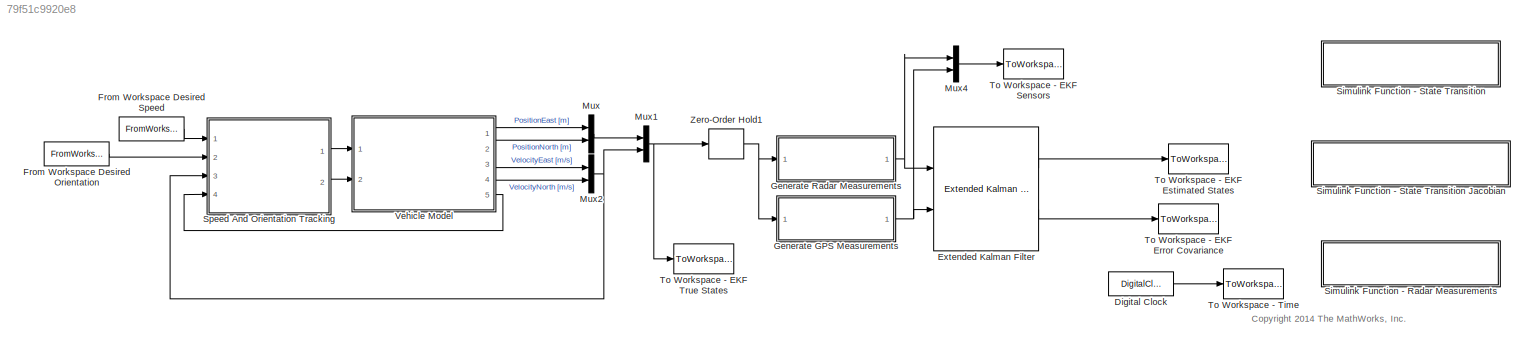
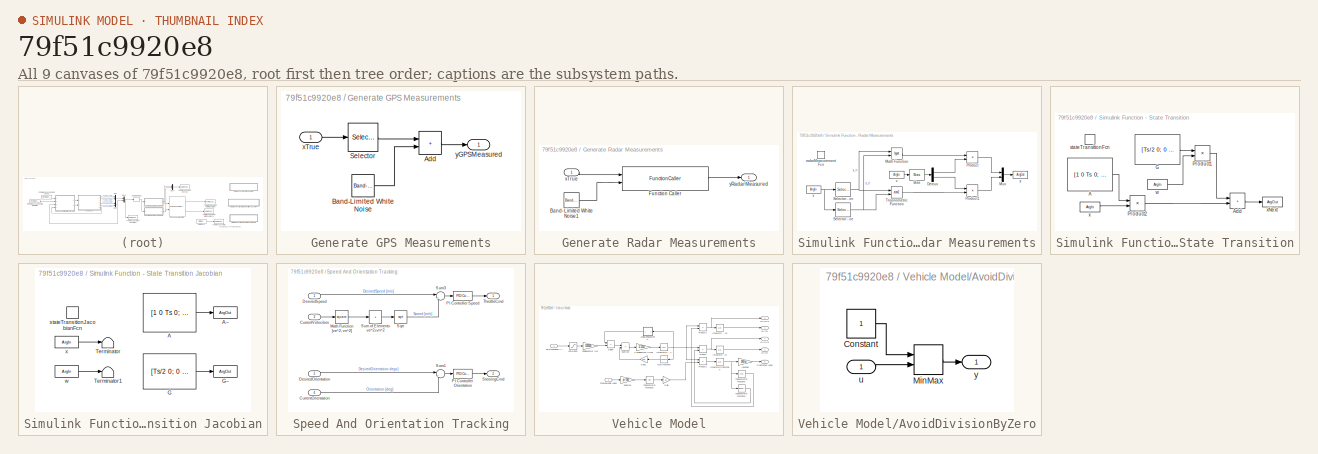
[diagram: thumbnail index - all 9 canvases of the model, root first then tree order]
MODEL slx_79f51c9920e8
KIND model
CONFIG AbsTol = auto
CONFIG EnableMultiTasking = on
CONFIG FixedStep = auto
CONFIG MaxStep = 0.1
CONFIG MinStep = auto
CONFIG RelTol = 1e-3
CONFIG SampleTimeConstraint = Unconstrained
CONFIG SolverName = ode45
CONFIG StartTime = 0.0
CONFIG StopTime = 450
WORKSPACE source: MATLAB code (in-file) + mxarray member
WORKSPACE L = 2.5
WORKSPACE v0 = 0
WORKSPACE xe0 = 0
WORKSPACE xn0 = 0
WORKSPACE theta0 = 0
WORKSPACE Ts = 1
WORKSPACE rr = [0 0 0 0 0 0 0 0 0 0 0 0 ... (9404 elements, 9404x1)]
WORKSPACE tt = [0 0.05 0.1 0.15 0.2 0.25 0.3 0.35 0.4 0.45 0.5 0.55 ... (9404 elements, 9404x1)]
WORKSPACE vv = [25 25 25 25 25 25 25 25 25 25 25 25 ... (9404 elements, 9404x1)]
BLOCK [DigitalClock] Digital Clock
  SampleTime = Ts
BLOCK [Reference] Extended Kalman Filter  REF=sharedTrackingLibrary/Extended Kalman Filter
  Ports = [2, 2]
  SourceBlock = sharedTrackingLibrary/Extended Kalman Filter
  SourceProductBaseCode = CT,DR,TF,ID,LP,NV,AR,RO,RR,UV,VE
  SourceType = Extended Kalman Filter
BLOCK [FromWorkspace] From Workspace Desired Orientation
  VariableName = [tt rr]
BLOCK [FromWorkspace] From Workspace Desired Speed
  NameLocation = top
  VariableName = [tt vv]
BLOCK [SubSystem] Generate GPS Measurements
  Ports = [1, 1]
  RequestExecContextInheritance = off
BLOCK [Sum] Generate GPS Measurements/Add
  IconShape = rectangular
  Ports = [2, 1]
BLOCK [Reference] Generate GPS Measurements/Band-Limited White Noise  REF=simulink/Sources/Band-Limited
White Noise
  Ports = [0, 1]
  SourceBlock = simulink/Sources/Band-Limited\nWhite Noise
  SourceProductBaseCode = SL
  SourceType = Band-Limited White Noise.
BLOCK [Selector] Generate GPS Measurements/Selector
  IndexOptions = Index vector (dialog)
  Indices = [1:2]
  InputPortWidth = 4
  OutputSizes = 1
  Ports = [1, 1]
BLOCK [Inport] Generate GPS Measurements/xTrue
  SampleTime = 20*Ts
BLOCK [Outport] Generate GPS Measurements/yGPSMeasured
  VectorParamsAs1DForOutWhenUnconnected = off
BLOCK [SubSystem] Generate Radar Measurements
  Ports = [1, 1]
  RequestExecContextInheritance = off
BLOCK [Reference] Generate Radar Measurements/Band-Limited White Noise1  REF=simulink/Sources/Band-Limited
White Noise
  Ports = [0, 1]
  SourceBlock = simulink/Sources/Band-Limited\nWhite Noise
  SourceProductBaseCode = SL
  SourceType = Band-Limited White Noise.
BLOCK [FunctionCaller] Generate Radar Measurements/Function Caller
  FunctionPrototype = y = radarMeasurementFcn(x,v)
  InputArgumentSpecifications = zeros(4,1), zeros(2,1)
  OutputArgumentSpecifications = zeros(2,1)
  Ports = [2, 1]
BLOCK [Inport] Generate Radar Measurements/xTrue
  SampleTime = 0.05
BLOCK [Outport] Generate Radar Measurements/yRadarMeasured
  VectorParamsAs1DForOutWhenUnconnected = off
BLOCK [Mux] Mux
  DisplayOption = bar
  Inputs = 2
  Ports = [2, 1]
BLOCK [Mux] Mux1
  DisplayOption = bar
  Inputs = 2
  Ports = [2, 1]
BLOCK [Mux] Mux2
  DisplayOption = bar
  Inputs = 2
  Ports = [2, 1]
BLOCK [Mux] Mux4
  DisplayOption = bar
  Inputs = 2
  Ports = [2, 1]
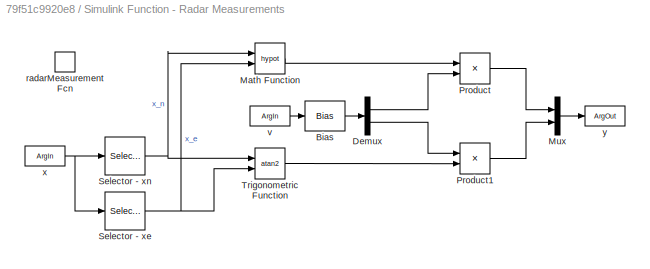
BLOCK [SubSystem] Simulink Function - Radar Measurements
  Ports = [0, 0, 0, 1]
  RequestExecContextInheritance = off
  TreatAsAtomicUnit = on
BLOCK [Bias] Simulink Function - Radar Measurements/Bias
  Bias = 1
  SaturateOnIntegerOverflow = off
BLOCK [Demux] Simulink Function - Radar Measurements/Demux
  Outputs = 2
  Ports = [1, 2]
BLOCK [Math] Simulink Function - Radar Measurements/Math Function
  Operator = hypot
  Ports = [2, 1]
  SignedPower = on
BLOCK [Mux] Simulink Function - Radar Measurements/Mux
  DisplayOption = bar
  Inputs = 2
  Ports = [2, 1]
BLOCK [Product] Simulink Function - Radar Measurements/Product
  Ports = [2, 1]
BLOCK [Product] Simulink Function - Radar Measurements/Product1
  Ports = [2, 1]
BLOCK [Selector] Simulink Function - Radar Measurements/Selector - xe
  IndexOptions = Index vector (dialog)
  Indices = 1
  InputPortWidth = 4
  OutputSizes = 1
  Ports = [1, 1]
BLOCK [Selector] Simulink Function - Radar Measurements/Selector - xn
  IndexOptions = Index vector (dialog)
  Indices = 2
  InputPortWidth = 4
  OutputSizes = 1
  Ports = [1, 1]
BLOCK [Trigonometry] Simulink Function - Radar Measurements/Trigonometric Function
  Operator = atan2
  Ports = [2, 1]
BLOCK [TriggerPort] Simulink Function - Radar Measurements/radarMeasurementFcn
  FunctionName = radarMeasurementFcn
  IsSimulinkFunction = on
  Ports = []
  StatesWhenEnabling = held
  TriggerType = function-call
  VariantControl = Variant
BLOCK [ArgIn] Simulink Function - Radar Measurements/v
  ArgumentName = v
  DisableCoverage = on
  Port = 2
  PortDimensions = 2
BLOCK [ArgIn] Simulink Function - Radar Measurements/x
  ArgumentName = x
  DisableCoverage = on
  PortDimensions = 4
BLOCK [ArgOut] Simulink Function - Radar Measurements/y
  ArgumentName = y
  DisableCoverage = on
  PortDimensions = 2
BLOCK [SubSystem] Simulink Function - State Transition
  Ports = [0, 0, 0, 1]
  RequestExecContextInheritance = off
  TreatAsAtomicUnit = on
BLOCK [SubSystem] Simulink Function - State Transition Jacobian
  Ports = [0, 0, 0, 1]
  RequestExecContextInheritance = off
  TreatAsAtomicUnit = on
BLOCK [Constant] Simulink Function - State Transition Jacobian/A
  Value = [1 0 Ts 0; 0 1 0 Ts; 0 0 1 0; 0 0 0 1]
BLOCK [ArgOut] Simulink Function - State Transition Jacobian/A~
  ArgumentName = A
  DisableCoverage = on
  PortDimensions = [4 4]
BLOCK [Constant] Simulink Function - State Transition Jacobian/G
  Value = [Ts/2 0; 0 Ts/2; 1 0; 0 1]
BLOCK [ArgOut] Simulink Function - State Transition Jacobian/G~
  ArgumentName = G
  Port = 2
  PortDimensions = [4 2]
BLOCK [Terminator] Simulink Function - State Transition Jacobian/Terminator
BLOCK [Terminator] Simulink Function - State Transition Jacobian/Terminator1
BLOCK [TriggerPort] Simulink Function - State Transition Jacobian/stateTransitionJacobianFcn
  FunctionName = stateTransitionJacobianFcn
  IsSimulinkFunction = on
  Ports = []
  StatesWhenEnabling = held
  TriggerType = function-call
  VariantControl = Variant
BLOCK [ArgIn] Simulink Function - State Transition Jacobian/w
  ArgumentName = w
  Port = 2
  PortDimensions = 2
BLOCK [ArgIn] Simulink Function - State Transition Jacobian/x
  ArgumentName = x
  DisableCoverage = on
  PortDimensions = 4
BLOCK [Constant] Simulink Function - State Transition/A
  Value = [1 0 Ts 0; 0 1 0 Ts; 0 0 1 0; 0 0 0 1]
BLOCK [Sum] Simulink Function - State Transition/Add
  IconShape = rectangular
  Ports = [2, 1]
BLOCK [Constant] Simulink Function - State Transition/G
  Value = [Ts/2 0; 0 Ts/2; 1 0; 0 1]
BLOCK [Product] Simulink Function - State Transition/Product1
  Multiplication = Matrix(*)
  Ports = [2, 1]
BLOCK [Product] Simulink Function - State Transition/Product2
  Multiplication = Matrix(*)
  Ports = [2, 1]
BLOCK [TriggerPort] Simulink Function - State Transition/stateTransitionFcn
  FunctionName = stateTransitionFcn
  IsSimulinkFunction = on
  Ports = []
  StatesWhenEnabling = held
  TriggerType = function-call
  VariantControl = Variant
BLOCK [ArgIn] Simulink Function - State Transition/w
  ArgumentName = w
  Port = 2
  PortDimensions = 2
BLOCK [ArgIn] Simulink Function - State Transition/x
  ArgumentName = x
  DisableCoverage = on
  PortDimensions = 4
BLOCK [ArgOut] Simulink Function - State Transition/xNext
  ArgumentName = xNext
  DisableCoverage = on
  PortDimensions = 4
BLOCK [SubSystem] Speed And Orientation Tracking
  Ports = [4, 2]
  RequestExecContextInheritance = off
BLOCK [Inport] Speed And Orientation Tracking/CurrentOrientation
  Port = 4
BLOCK [Inport] Speed And Orientation Tracking/CurrentVelocities
  Port = 3
BLOCK [Inport] Speed And Orientation Tracking/DesiredOrientation
  Port = 2
BLOCK [Inport] Speed And Orientation Tracking/DesiredSpeed
BLOCK [Math] Speed And Orientation Tracking/Math Function [ve^2; vn^2]
  Operator = square
  Ports = [1, 1]
  SignedPower = on
BLOCK [Reference] Speed And Orientation Tracking/PI Controller Orientation  REF=pid_lib/PID Controller
  Ports = [1, 1]
  SourceBlock = pid_lib/PID Controller
  SourceProductBaseCode = SL
  SourceType = PID 1dof
BLOCK [Reference] Speed And Orientation Tracking/PI Controller Speed  REF=pid_lib/PID Controller
  Ports = [1, 1]
  SourceBlock = pid_lib/PID Controller
  SourceProductBaseCode = SL
  SourceType = PID 1dof
BLOCK [Sqrt] Speed And Orientation Tracking/Sqrt
BLOCK [Outport] Speed And Orientation Tracking/SteeringCmd
  Port = 2
BLOCK [Sum] Speed And Orientation Tracking/Sum of Elements ve^2+vn^2
  IconShape = rectangular
  Inputs = +
  Ports = [1, 1]
BLOCK [Sum] Speed And Orientation Tracking/Sum1
  Inputs = |+-
  Ports = [2, 1]
BLOCK [Sum] Speed And Orientation Tracking/Sum3
  Inputs = |+-
  Ports = [2, 1]
BLOCK [Outport] Speed And Orientation Tracking/ThrottleCmd
BLOCK [ToWorkspace] To Workspace - EKF Error Covariance
  FixptAsFi = on
  MaxDataPoints = inf
  Ports = [1]
  SampleTime = -1
  VariableName = EKF_Z
BLOCK [ToWorkspace] To Workspace - EKF Estimated States
  FixptAsFi = on
  MaxDataPoints = inf
  Ports = [1]
  SampleTime = -1
  Save2DSignal = 2-D array (concatenate along first dimension)
  VariableName = EKF_xhat
BLOCK [ToWorkspace] To Workspace - EKF Sensors
  FixptAsFi = on
  MaxDataPoints = inf
  Ports = [1]
  SampleTime = -1
  Save2DSignal = 2-D array (concatenate along first dimension)
  VariableName = EKF_y
BLOCK [ToWorkspace] To Workspace - EKF True States
  FixptAsFi = on
  MaxDataPoints = inf
  Ports = [1]
  SampleTime = Ts
  Save2DSignal = 2-D array (concatenate along first dimension)
  VariableName = EKF_x
BLOCK [ToWorkspace] To Workspace - Time
  FixptAsFi = on
  MaxDataPoints = inf
  Ports = [1]
  SampleTime = -1
  Save2DSignal = 2-D array (concatenate along first dimension)
  VariableName = t
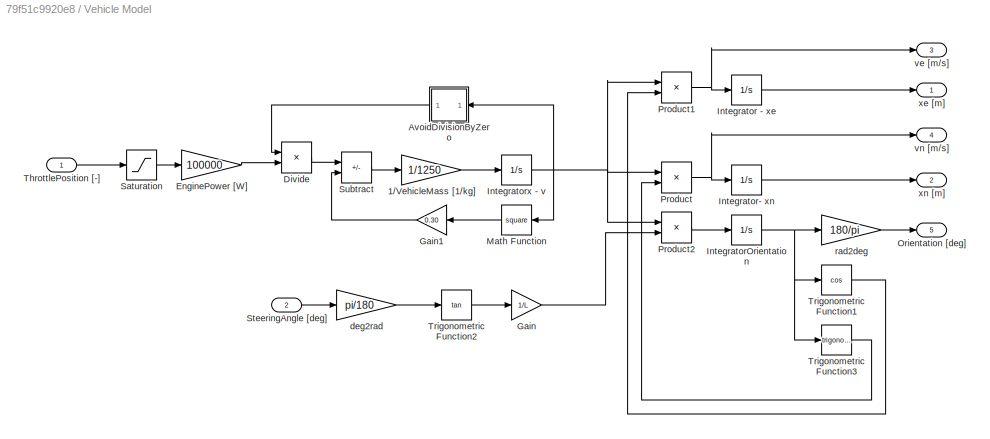
BLOCK [SubSystem] Vehicle Model
  Ports = [2, 5]
  RequestExecContextInheritance = off
BLOCK [Gain] Vehicle Model/1//VehicleMass [1//kg]
  Gain = 1/1250
BLOCK [SubSystem] Vehicle Model/AvoidDivisionByZero
  Ports = [1, 1]
  RequestExecContextInheritance = off
BLOCK [Constant] Vehicle Model/AvoidDivisionByZero/Constant
BLOCK [MinMax] Vehicle Model/AvoidDivisionByZero/MinMax
  Function = max
  Inputs = 2
  Ports = [2, 1]
BLOCK [Inport] Vehicle Model/AvoidDivisionByZero/u
BLOCK [Outport] Vehicle Model/AvoidDivisionByZero/y
BLOCK [Product] Vehicle Model/Divide
  Inputs = /*
  Ports = [2, 1]
BLOCK [Gain] Vehicle Model/EnginePower [W]
  Gain = 100000
BLOCK [Gain] Vehicle Model/Gain
  Gain = 1/L
BLOCK [Gain] Vehicle Model/Gain1
  Gain = 0.30
BLOCK [Integrator] Vehicle Model/Integrator - xe
  InitialCondition = xe0
  Ports = [1, 1]
BLOCK [Integrator] Vehicle Model/Integrator- xn
  InitialCondition = xn0
  Ports = [1, 1]
BLOCK [Integrator] Vehicle Model/IntegratorOrientation
  InitialCondition = theta0
  Ports = [1, 1]
BLOCK [Integrator] Vehicle Model/Integratorx - v
  InitialCondition = v0
  Ports = [1, 1]
BLOCK [Math] Vehicle Model/Math Function
  Operator = square
  Ports = [1, 1]
  SignedPower = on
BLOCK [Outport] Vehicle Model/Orientation [deg]
  Port = 5
BLOCK [Product] Vehicle Model/Product
  Ports = [2, 1]
BLOCK [Product] Vehicle Model/Product1
  Ports = [2, 1]
BLOCK [Product] Vehicle Model/Product2
  Ports = [2, 1]
BLOCK [Saturate] Vehicle Model/Saturation
  LowerLimit = -1
  UpperLimit = 1
BLOCK [Inport] Vehicle Model/SteeringAngle [deg] 
  Port = 2
BLOCK [Sum] Vehicle Model/Subtract
  IconShape = rectangular
  Inputs = +-
  Ports = [2, 1]
BLOCK [Inport] Vehicle Model/ThrottlePosition [-]
BLOCK [Trigonometry] Vehicle Model/Trigonometric Function1
  Operator = cos
  Ports = [1, 1]
BLOCK [Trigonometry] Vehicle Model/Trigonometric Function2
  Operator = tan
  Ports = [1, 1]
BLOCK [Trigonometry] Vehicle Model/Trigonometric Function3
  Ports = [1, 1]
BLOCK [Gain] Vehicle Model/deg2rad
  Gain = pi/180
BLOCK [Gain] Vehicle Model/rad2deg
  Gain = 180/pi
BLOCK [Outport] Vehicle Model/ve [m//s]
  Port = 3
BLOCK [Outport] Vehicle Model/vn [m//s]
  Port = 4
BLOCK [Outport] Vehicle Model/xe [m]
BLOCK [Outport] Vehicle Model/xn [m]
  Port = 2
BLOCK [ZeroOrderHold] Zero-Order Hold1
  SampleTime = Ts
ANNOTATION (root): <copyright redacted>
LINE Digital Clock:1 -> To Workspace - Time:1
LINE Extended Kalman Filter:1 -> To Workspace - EKF Estimated States:1
LINE Extended Kalman Filter:2 -> To Workspace - EKF Error Covariance:1
LINE From Workspace Desired Orientation:1 -> Speed And Orientation Tracking:2
LINE From Workspace Desired Speed:1 -> Speed And Orientation Tracking:1
LINE Generate GPS Measurements/Add:1 -> Generate GPS Measurements/yGPSMeasured:1
LINE Generate GPS Measurements/Band-Limited White Noise:1 -> Generate GPS Measurements/Add:2
LINE Generate GPS Measurements/Selector:1 -> Generate GPS Measurements/Add:1
LINE Generate GPS Measurements/xTrue:1 -> Generate GPS Measurements/Selector:1
NET Generate GPS Measurements:1 -> Extended Kalman Filter:2, Mux4:2
LINE Generate Radar Measurements/Band-Limited White Noise1:1 -> Generate Radar Measurements/Function Caller:2
LINE Generate Radar Measurements/Function Caller:1 -> Generate Radar Measurements/yRadarMeasured:1
LINE Generate Radar Measurements/xTrue:1 -> Generate Radar Measurements/Function Caller:1
NET Generate Radar Measurements:1 -> Extended Kalman Filter:1, Mux4:1
NET Mux1:1 -> To Workspace - EKF True States:1, Zero-Order Hold1:1
NET Mux2:1 -> Mux1:2, Speed And Orientation Tracking:3
LINE Mux4:1 -> To Workspace - EKF Sensors:1
LINE Mux:1 -> Mux1:1
LINE Simulink Function - Radar Measurements/Bias:1 -> Simulink Function - Radar Measurements/Demux:1
LINE Simulink Function - Radar Measurements/Demux:1 -> Simulink Function - Radar Measurements/Product:2
LINE Simulink Function - Radar Measurements/Demux:2 -> Simulink Function - Radar Measurements/Product1:1
LINE Simulink Function - Radar Measurements/Math Function:1 -> Simulink Function - Radar Measurements/Product:1
LINE Simulink Function - Radar Measurements/Mux:1 -> Simulink Function - Radar Measurements/y:1
LINE Simulink Function - Radar Measurements/Product1:1 -> Simulink Function - Radar Measurements/Mux:2
LINE Simulink Function - Radar Measurements/Product:1 -> Simulink Function - Radar Measurements/Mux:1
NET Simulink Function - Radar Measurements/Selector - xe:1 -> Simulink Function - Radar Measurements/Math Function:2, Simulink Function - Radar Measurements/Trigonometric Function:2
NET Simulink Function - Radar Measurements/Selector - xn:1 -> Simulink Function - Radar Measurements/Math Function:1, Simulink Function - Radar Measurements/Trigonometric Function:1
LINE Simulink Function - Radar Measurements/Trigonometric Function:1 -> Simulink Function - Radar Measurements/Product1:2
LINE Simulink Function - Radar Measurements/v:1 -> Simulink Function - Radar Measurements/Bias:1
NET Simulink Function - Radar Measurements/x:1 -> Simulink Function - Radar Measurements/Selector - xe:1, Simulink Function - Radar Measurements/Selector - xn:1
LINE Simulink Function - State Transition Jacobian/A:1 -> Simulink Function - State Transition Jacobian/A~:1
LINE Simulink Function - State Transition Jacobian/G:1 -> Simulink Function - State Transition Jacobian/G~:1
LINE Simulink Function - State Transition Jacobian/w:1 -> Simulink Function - State Transition Jacobian/Terminator1:1
LINE Simulink Function - State Transition Jacobian/x:1 -> Simulink Function - State Transition Jacobian/Terminator:1
LINE Simulink Function - State Transition/A:1 -> Simulink Function - State Transition/Product2:1
LINE Simulink Function - State Transition/Add:1 -> Simulink Function - State Transition/xNext:1
LINE Simulink Function - State Transition/G:1 -> Simulink Function - State Transition/Product1:1
LINE Simulink Function - State Transition/Product1:1 -> Simulink Function - State Transition/Add:1
LINE Simulink Function - State Transition/Product2:1 -> Simulink Function - State Transition/Add:2
LINE Simulink Function - State Transition/w:1 -> Simulink Function - State Transition/Product1:2
LINE Simulink Function - State Transition/x:1 -> Simulink Function - State Transition/Product2:2
LINE Speed And Orientation Tracking/CurrentOrientation:1 -> Speed And Orientation Tracking/Sum1:2
LINE Speed And Orientation Tracking/CurrentVelocities:1 -> Speed And Orientation Tracking/Math Function [ve^2; vn^2]:1
LINE Speed And Orientation Tracking/DesiredOrientation:1 -> Speed And Orientation Tracking/Sum1:1
LINE Speed And Orientation Tracking/DesiredSpeed:1 -> Speed And Orientation Tracking/Sum3:1
LINE Speed And Orientation Tracking/Math Function [ve^2; vn^2]:1 -> Speed And Orientation Tracking/Sum of Elements ve^2+vn^2:1
LINE Speed And Orientation Tracking/PI Controller Orientation:1 -> Speed And Orientation Tracking/SteeringCmd:1
LINE Speed And Orientation Tracking/PI Controller Speed:1 -> Speed And Orientation Tracking/ThrottleCmd:1
LINE Speed And Orientation Tracking/Sqrt:1 -> Speed And Orientation Tracking/Sum3:2
LINE Speed And Orientation Tracking/Sum of Elements ve^2+vn^2:1 -> Speed And Orientation Tracking/Sqrt:1
LINE Speed And Orientation Tracking/Sum1:1 -> Speed And Orientation Tracking/PI Controller Orientation:1
LINE Speed And Orientation Tracking/Sum3:1 -> Speed And Orientation Tracking/PI Controller Speed:1
LINE Speed And Orientation Tracking:1 -> Vehicle Model:1
LINE Speed And Orientation Tracking:2 -> Vehicle Model:2
LINE Vehicle Model/1//VehicleMass [1//kg]:1 -> Vehicle Model/Integratorx - v:1
LINE Vehicle Model/AvoidDivisionByZero/Constant:1 -> Vehicle Model/AvoidDivisionByZero/MinMax:1
LINE Vehicle Model/AvoidDivisionByZero/MinMax:1 -> Vehicle Model/AvoidDivisionByZero/y:1
LINE Vehicle Model/AvoidDivisionByZero/u:1 -> Vehicle Model/AvoidDivisionByZero/MinMax:2
LINE Vehicle Model/AvoidDivisionByZero:1 -> Vehicle Model/Divide:1
LINE Vehicle Model/Divide:1 -> Vehicle Model/Subtract:1
LINE Vehicle Model/EnginePower [W]:1 -> Vehicle Model/Divide:2
LINE Vehicle Model/Gain1:1 -> Vehicle Model/Subtract:2
LINE Vehicle Model/Gain:1 -> Vehicle Model/Product2:2
LINE Vehicle Model/Integrator - xe:1 -> Vehicle Model/xe [m]:1
LINE Vehicle Model/Integrator- xn:1 -> Vehicle Model/xn [m]:1
NET Vehicle Model/IntegratorOrientation:1 -> Vehicle Model/Trigonometric Function1:1, Vehicle Model/Trigonometric Function3:1, Vehicle Model/rad2deg:1
NET Vehicle Model/Integratorx - v:1 -> Vehicle Model/AvoidDivisionByZero:1, Vehicle Model/Math Function:1, Vehicle Model/Product1:1, Vehicle Model/Product2:1, Vehicle Model/Product:1
LINE Vehicle Model/Math Function:1 -> Vehicle Model/Gain1:1
NET Vehicle Model/Product1:1 -> Vehicle Model/Integrator - xe:1, Vehicle Model/ve [m//s]:1
LINE Vehicle Model/Product2:1 -> Vehicle Model/IntegratorOrientation:1
NET Vehicle Model/Product:1 -> Vehicle Model/Integrator- xn:1, Vehicle Model/vn [m//s]:1
LINE Vehicle Model/Saturation:1 -> Vehicle Model/EnginePower [W]:1
LINE Vehicle Model/SteeringAngle [deg] :1 -> Vehicle Model/deg2rad:1
LINE Vehicle Model/Subtract:1 -> Vehicle Model/1//VehicleMass [1//kg]:1
LINE Vehicle Model/ThrottlePosition [-]:1 -> Vehicle Model/Saturation:1
LINE Vehicle Model/Trigonometric Function1:1 -> Vehicle Model/Product1:2
LINE Vehicle Model/Trigonometric Function2:1 -> Vehicle Model/Gain:1
LINE Vehicle Model/Trigonometric Function3:1 -> Vehicle Model/Product:2
LINE Vehicle Model/deg2rad:1 -> Vehicle Model/Trigonometric Function2:1
LINE Vehicle Model/rad2deg:1 -> Vehicle Model/Orientation [deg]:1
LINE Vehicle Model:1 -> Mux:1
LINE Vehicle Model:2 -> Mux:2
LINE Vehicle Model:3 -> Mux2:1
LINE Vehicle Model:4 -> Mux2:2
LINE Vehicle Model:5 -> Speed And Orientation Tracking:4
NET Zero-Order Hold1:1 -> Generate GPS Measurements:1, Generate Radar Measurements:1
note: NET lines group one-source signal fan-out (src -> all destinations, sorted); 1:1 wires keep LINE
